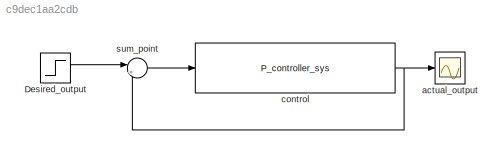
MODEL slx_c9dec1aa2cdb
KIND model
CONFIG AbsTol = auto
CONFIG EnableMultiTasking = off
CONFIG FixedStep = auto
CONFIG MaxStep = auto
CONFIG MinStep = auto
CONFIG RelTol = 1e-3
CONFIG SampleTimeConstraint = Unconstrained
CONFIG SolverName = VariableStepAuto
CONFIG StartTime = 0.0
CONFIG StopTime = 10.0
BLOCK [Step] Desired_output
  SampleTime = 0
BLOCK [Scope] actual_output
  Floating = off
  NumInputPorts = 1
  ScopeSpecificationString = Simulink.scopes.TimeScopeBlockCfg('CurrentConfiguration', extmgr.ConfigurationSet(extmgr.Configuration('Core','General UI',true),extmgr.Configuration('Core','Source UI',true),extmgr.Configuration('Sources','WiredSimulink',true),extmgr.Configuration('Visuals','Time Domain',true,'SerializedDisplays',{struct('MinYLimReal','-0.11538','MaxYLimReal','1.03846','YLabelReal','','MinYLimMag','0.00000','MaxY...<+1441ch>
BLOCK [Reference] control  REF=P_Controller_Library/P_controller_sys
  SourceBlock = P_Controller_Library/P_controller_sys
BLOCK [Sum] sum_point
  Inputs = |+-
LINE Desired_output:1 -> sum_point:1
NET control:1 -> actual_output:1, sum_point:2
LINE sum_point:1 -> control:1
note: NET lines group one-source signal fan-out (src -> all destinations, sorted); 1:1 wires keep LINE
